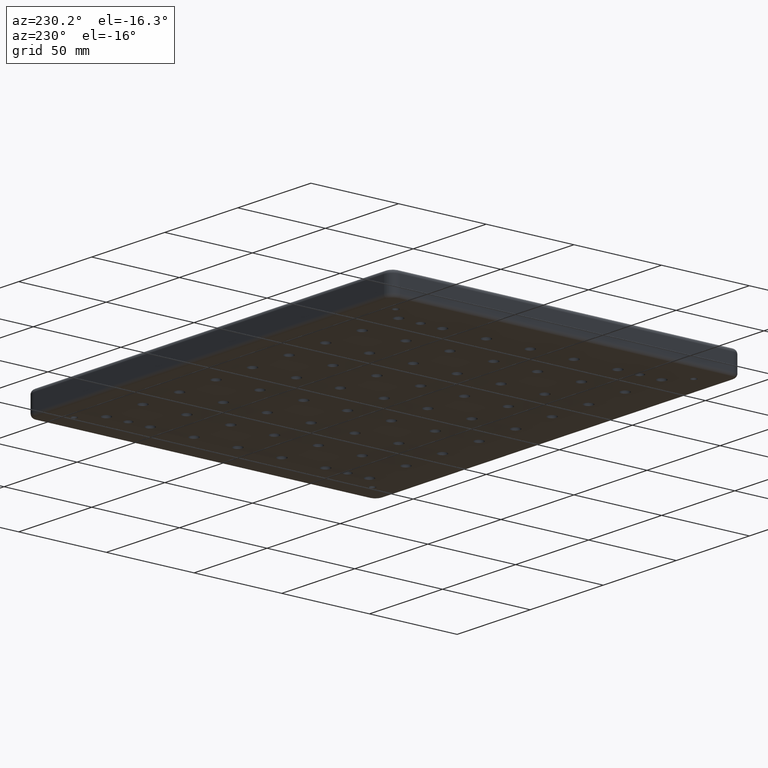
[diagram: clean part render]
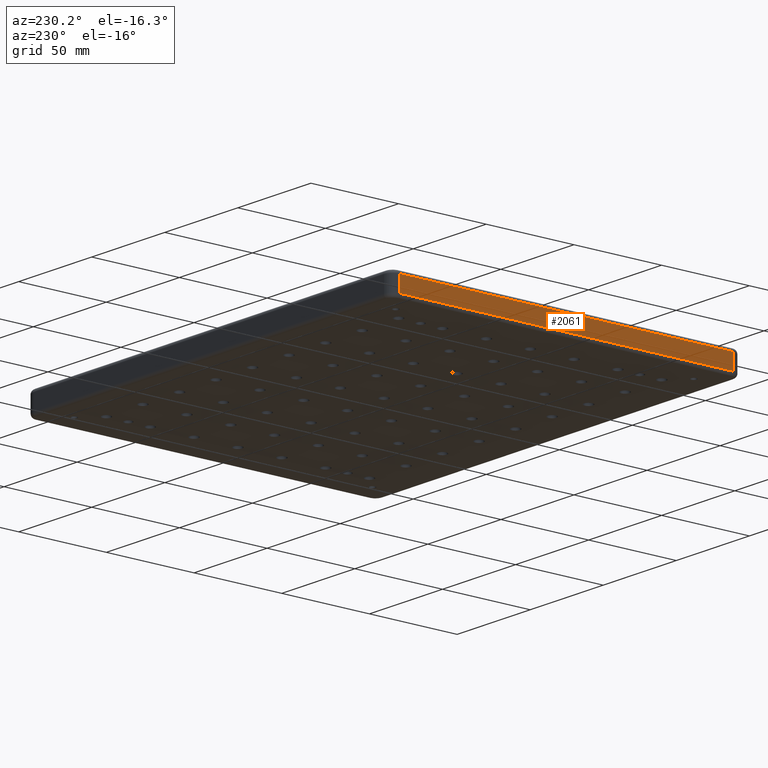
[diagram: same view with one face highlighted and labeled with its STEP entity id]
A machine part, auxiliary view. The second image highlights one B-rep face of the part: STEP entity #2061.
In plain terms, the highlighted planar face has unit normal (-1, 0, 0).
Its self-contained STEP definition (entity closure, byte-faithful):
#138 = ORIENTED_EDGE ( 'NONE', *, *, #2529, .T. ) ;
#255 = LINE ( 'NONE', #3819, #1909 ) ;
#421 = CARTESIAN_POINT ( 'NONE',  ( -125.0000000000000000, -95.00000000000011369, -11.00000000000000000 ) ) ;
#423 = EDGE_CURVE ( 'NONE', #2797, #3959, #5061, .T. ) ;
#644 = LINE ( 'NONE', #5596, #2109 ) ;
#1081 = AXIS2_PLACEMENT_3D ( 'NONE', #3793, #4790, #4422 ) ;
#1337 = ORIENTED_EDGE ( 'NONE', *, *, #5227, .T. ) ;
#1463 = DIRECTION ( 'NONE',  ( 0.000000000000000000, -1.000000000000000000, 0.000000000000000000 ) ) ;
#1818 = VECTOR ( 'NONE', #1463, 1000.000000000000000 ) ;
#1851 = CARTESIAN_POINT ( 'NONE',  ( -125.0000000000000000, 95.00000000000011369, -2.000000000000001776 ) ) ;
#1909 = VECTOR ( 'NONE', #3216, 1000.000000000000000 ) ;
#1976 = ORIENTED_EDGE ( 'NONE', *, *, #423, .F. ) ;
#2061 = ADVANCED_FACE ( 'NONE', ( #2535 ), #2979, .T. ) ;
#2109 = VECTOR ( 'NONE', #3069, 1000.000000000000000 ) ;
#2266 = CARTESIAN_POINT ( 'NONE',  ( -125.0000000000000000, -95.00000000000011369, -11.00000000000000000 ) ) ;
#2492 = ORIENTED_EDGE ( 'NONE', *, *, #2869, .T. ) ;
#2529 = EDGE_CURVE ( 'NONE', #6258, #2567, #644, .T. ) ;
#2535 = FACE_OUTER_BOUND ( 'NONE', #3838, .T. ) ;
#2567 = VERTEX_POINT ( 'NONE', #2676 ) ;
#2591 = DIRECTION ( 'NONE',  ( 0.000000000000000000, 0.000000000000000000, 1.000000000000000000 ) ) ;
#2676 = CARTESIAN_POINT ( 'NONE',  ( -125.0000000000000000, -95.00000000000011369, -2.000000000000003553 ) ) ;
#2797 = VERTEX_POINT ( 'NONE', #3608 ) ;
#2869 = EDGE_CURVE ( 'NONE', #2567, #3959, #255, .T. ) ;
#2979 = PLANE ( 'NONE',  #1081 ) ;
#3069 = DIRECTION ( 'NONE',  ( 0.000000000000000000, 0.000000000000000000, 1.000000000000000000 ) ) ;
#3180 = CARTESIAN_POINT ( 'NONE',  ( -125.0000000000000000, 95.00000000000011369, -13.00000000000000000 ) ) ;
#3216 = DIRECTION ( 'NONE',  ( -0.000000000000000000, 1.000000000000000000, -0.000000000000000000 ) ) ;
#3608 = CARTESIAN_POINT ( 'NONE',  ( -125.0000000000000000, 95.00000000000011369, -11.00000000000000000 ) ) ;
#3793 = CARTESIAN_POINT ( 'NONE',  ( -125.0000000000000000, -95.00000000000011369, -13.00000000000000000 ) ) ;
#3819 = CARTESIAN_POINT ( 'NONE',  ( -125.0000000000000000, 95.00000000000011369, -2.000000000000000000 ) ) ;
#3838 = EDGE_LOOP ( 'NONE', ( #1976, #1337, #138, #2492 ) ) ;
#3959 = VERTEX_POINT ( 'NONE', #1851 ) ;
#4422 = DIRECTION ( 'NONE',  ( 0.000000000000000000, 0.000000000000000000, 1.000000000000000000 ) ) ;
#4790 = DIRECTION ( 'NONE',  ( -1.000000000000000000, 0.000000000000000000, 0.000000000000000000 ) ) ;
#5061 = LINE ( 'NONE', #3180, #6102 ) ;
#5227 = EDGE_CURVE ( 'NONE', #2797, #6258, #5842, .T. ) ;
#5596 = CARTESIAN_POINT ( 'NONE',  ( -125.0000000000000000, -95.00000000000011369, -13.00000000000000000 ) ) ;
#5842 = LINE ( 'NONE', #421, #1818 ) ;
#6102 = VECTOR ( 'NONE', #2591, 1000.000000000000000 ) ;
#6258 = VERTEX_POINT ( 'NONE', #2266 ) ;